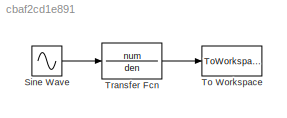
MODEL slx_cbaf2cd1e891
KIND model
CONFIG AbsTol = auto
CONFIG EnableMultiTasking = off
CONFIG FixedStep = 0.005
CONFIG MaxStep = auto
CONFIG MinStep = auto
CONFIG RelTol = 1e-3
CONFIG SampleTimeConstraint = Unconstrained
CONFIG Solver = ode4
CONFIG SolverName = ode4
CONFIG StartTime = 0.0
CONFIG StopTime = 6
BLOCK [Sin] Sine Wave
  Amplitude = 2.5
  Frequency = 2*2*pi
  Ports = [0, 1]
  SampleTime = 0
BLOCK [ToWorkspace] To Workspace
  FixptAsFi = on
  MaxDataPoints = inf
  Ports = [1]
  SampleTime = -1
  VariableName = modelvalidation
BLOCK [TransferFcn] Transfer Fcn
  Denominator = den
  Numerator = num
LINE Sine Wave:1 -> Transfer Fcn:1
LINE Transfer Fcn:1 -> To Workspace:1
